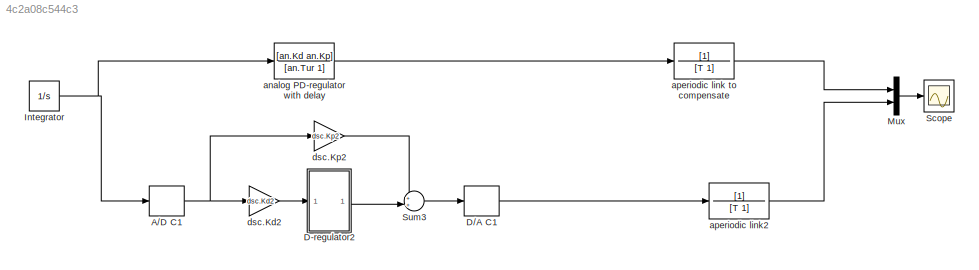
MODEL slx_4c2a08c544c3
KIND model
CONFIG AbsTol = auto
CONFIG EnableMultiTasking = off
CONFIG FixedStep = To/100
CONFIG MaxStep = To/100
CONFIG MinStep = auto
CONFIG RelTol = 1e-3
CONFIG SampleTimeConstraint = Unconstrained
CONFIG SolverName = ode23tb
CONFIG StartTime = 0.0
CONFIG StopTime = Tmdl
BLOCK [ZeroOrderHold] A//D C1
  SampleTime = To
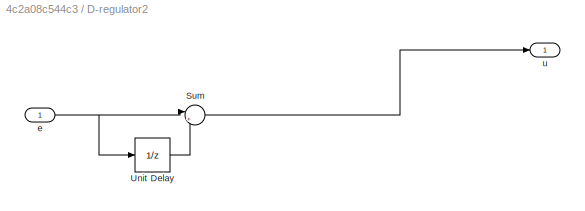
BLOCK [SubSystem] D-regulator2
BLOCK [Sum] D-regulator2/Sum
  Inputs = |+-
BLOCK [UnitDelay] D-regulator2/Unit Delay
  HasFrameUpgradeWarning = on
  SampleTime = To
BLOCK [Inport] D-regulator2/e
BLOCK [Outport] D-regulator2/u
BLOCK [ZeroOrderHold] D//A C1
  SampleTime = To
BLOCK [Integrator] Integrator
  InitialCondition = 1
BLOCK [Mux] Mux
  DisplayOption = bar
  Inputs = 2
BLOCK [Scope] Scope
  Floating = off
  NumInputPorts = 1
  ScopeSpecificationString = Simulink.scopes.TimeScopeBlockCfg('CurrentConfiguration', extmgr.ConfigurationSet(extmgr.Configuration('Core','General UI',true),extmgr.Configuration('Core','Source UI',true),extmgr.Configuration('Sources','WiredSimulink',true,'DataLoggingVariableName','y','DataLogging',true,'DataLoggingSaveFormat','Array'),extmgr.Configuration('Visuals','Time Domain',true,'SerializedDisplays',{struct('MinYLimReal...<+1392ch>
BLOCK [Sum] Sum3
  Inputs = ++|
BLOCK [TransferFcn] analog PD-regulator with delay
  Denominator = [an.Tur 1]
  Numerator = [an.Kd an.Kp]
BLOCK [TransferFcn] aperiodic link to compensate
  Denominator = [T 1]
BLOCK [TransferFcn] aperiodic link2
  Denominator = [T 1]
BLOCK [Gain] dsc.Kd2
  Gain = dsc.Kd2
BLOCK [Gain] dsc.Kp2
  Gain = dsc.Kp2
NET A//D C1:1 -> dsc.Kd2:1, dsc.Kp2:1
LINE D-regulator2/Sum:1 -> D-regulator2/u:1
LINE D-regulator2/Unit Delay:1 -> D-regulator2/Sum:2
NET D-regulator2/e:1 -> D-regulator2/Sum:1, D-regulator2/Unit Delay:1
LINE D-regulator2:1 -> Sum3:2
LINE D//A C1:1 -> aperiodic link2:1
NET Integrator:1 -> A//D C1:1, analog PD-regulator with delay:1
LINE Mux:1 -> Scope:1
LINE Sum3:1 -> D//A C1:1
LINE analog PD-regulator with delay:1 -> aperiodic link to compensate:1
LINE aperiodic link to compensate:1 -> Mux:1
LINE aperiodic link2:1 -> Mux:2
LINE dsc.Kd2:1 -> D-regulator2:1
LINE dsc.Kp2:1 -> Sum3:1
note: NET lines group one-source signal fan-out (src -> all destinations, sorted); 1:1 wires keep LINE
